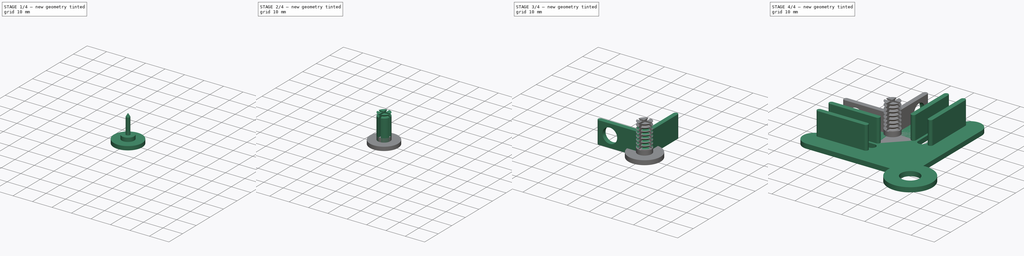
[diagram: build sequence overview — one tinted view per stage of 4, left to right]
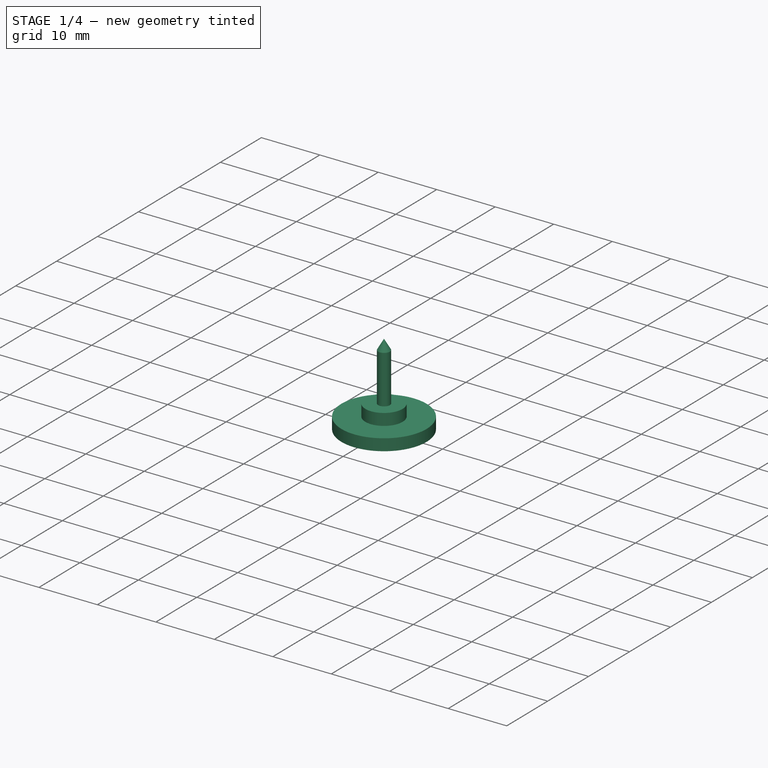
[diagram: stage 1 of 4 — iso view after this stage's code; geometry added in this stage tinted green]
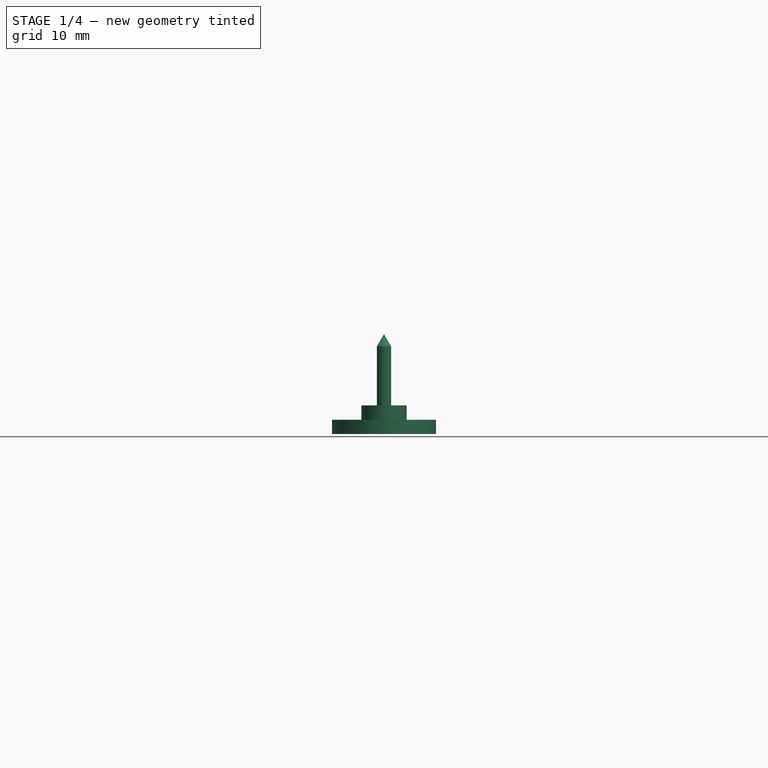
[diagram: stage 1 of 4 — front view after this stage's code; geometry added in this stage tinted green]
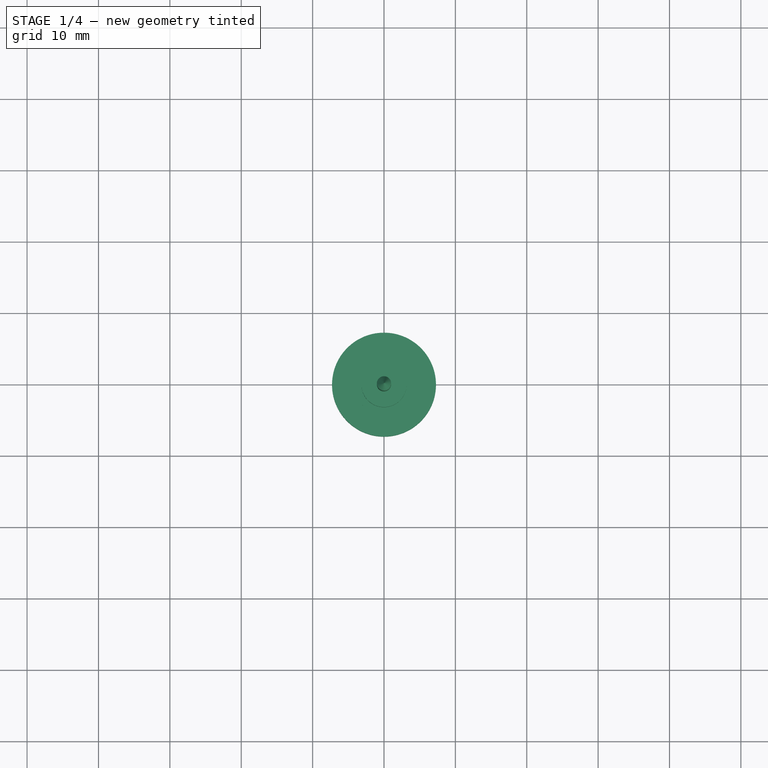
[diagram: stage 1 of 4 — top view after this stage's code; geometry added in this stage tinted green]
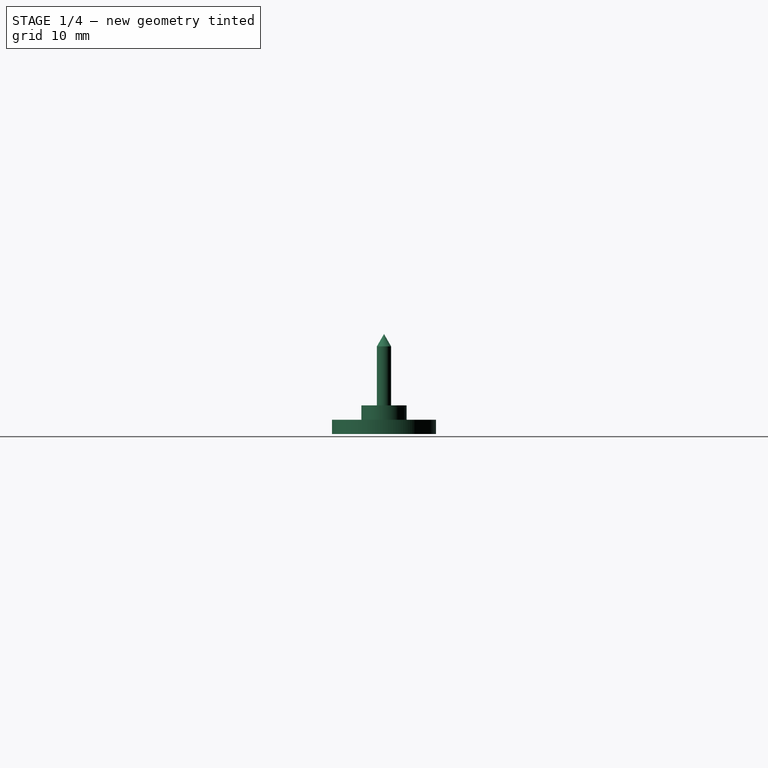
[diagram: stage 1 of 4 — right view after this stage's code; geometry added in this stage tinted green]
FCSTD DOCUMENT  (FreeCAD 0.18.4R)
Label: brackets
License: All rights reserved
LicenseURL: http://en.wikipedia.org/wiki/All_rights_reserved
objects: Sketcher::SketchObject×10, PartDesign::Pad×5, PartDesign::Plane×5, PartDesign::Body×5, PartDesign::Pocket×2, PartDesign::Revolution×2, Spreadsheet::Sheet×1, PartDesign::Mirrored×1, PartDesign::Groove×1, PartDesign::LinearPattern×1
note: 42 computed .brp shape members not serialized (recipe doc carries the construction recipe); baked Part::Feature solids carry a one-line shape summary decoded from their .brp

FEATURE [PartDesign::Body] Body001  label="side bracket"
  Group = -> [Sketch002,Pad002,DatumPlane001,Sketch003,Pocket,DatumPlane002,Mirrored]
  Origin = -> Origin001
  Tip = -> Mirrored
FEATURE [Sketcher::SketchObject] Sketch004
  MapMode = 5
  Support = -> [XY_Plane002]
  expr: Constraints[1] = dimz.B14 / 2 + dimz.B16 / 2
  sketch-geometry (1):
    g0: Circle CenterX=0 CenterY=0 CenterZ=0 NormalX=0 NormalY=0 NormalZ=1 AngleXU=0 Radius=4.175
  constraints (2):
    c: Coincident(g0,g-1)
    c: Radius(g0) = 4.175
FEATURE [PartDesign::Pad] Pad003
  Length = 2
  Length2 = 100
  Profile = -> Sketch004
  Type = 0
  expr: Length = dimz.B16
FEATURE [PartDesign::Body] Body002  label="locking pin"
  Group = -> [Sketch004,Pad003,DatumPlane003,Sketch005,Pad004,Sketch006,Pocket001,DatumPlane004,Sketch007,Groove,LinearPattern]
  Origin = -> Origin002
  Tip = -> LinearPattern
FEATURE [Sketcher::SketchObject] Sketch008
  MapMode = 5
  Placement = pos=(0,0,0) rot=(0.57735,0.57735,0.57735;2.0944rad)
  Support = -> [YZ_Plane003]
  expr: Constraints[11] = 0.5 * (dimz.B14 - 2 * dimz.B17 - 2 * 0.3mm)
  expr: Constraints[10] = dimz.B22
  expr: Constraints[9] = dimz.B23
  expr: Constraints[7] = dimz.B21
  sketch-geometry (4):
    g0: LineSegment StartX=2.125 StartY=0 StartZ=0 EndX=3.2797 EndY=2 EndZ=0
    g1: LineSegment StartX=3.2797 StartY=2 StartZ=0 EndX=7.2797 EndY=2 EndZ=0
    g2: LineSegment StartX=7.2797 StartY=2 StartZ=0 EndX=7.2797 EndY=0 EndZ=0
    g3: LineSegment StartX=7.2797 StartY=0 StartZ=0 EndX=2.125 EndY=0 EndZ=0
  constraints (12):
    c: Coincident(g0,g1)
    c: Coincident(g1,g2)
    c: Coincident(g2,g3)
    c: Coincident(g3,g0)
    c: PointOnObject(g0,g-1)
    c: Parallel(g3,g1)
    c: Parallel(g2,g-2)
    c: Angle(g3,g0) = 1.0472
    c: Parallel(g3,g-1)
    c: DistanceX(g1,g1) = 4
    c: DistanceY(g2,g2) = 2
    c: DistanceX(g-1,g0) = 2.125
FEATURE [PartDesign::Revolution] Revolution
  Angle = 360
  Axis = (-2e-16,3e-16,1)
  Base = (0,0,0)
  Placement = pos=(0,0,0) rot=(0.57735,0.57735,0.57735;2.0944rad)
  Profile = -> Sketch008
  ReferenceAxis = -> Sketch008 [V_Axis]
  Reversed = true
FEATURE [PartDesign::Body] Body003  label="lockingnut"
  Group = -> [Sketch008,Revolution]
  Origin = -> Origin003
  Tip = -> Revolution
FEATURE [Sketcher::SketchObject] Sketch009
  MapMode = 5
  Placement = pos=(0,0,0) rot=(1,0,0;1.5708rad)
  Support = -> [XZ_Plane004]
  expr: Constraints[21] = dimz.B16
  expr: Constraints[20] = dimz.B14 / 2
  expr: Constraints[19] = dimz.B16
  expr: Constraints[18] = dimz.B8
  expr: Constraints[22] = dimz.B27 / 2
  expr: Constraints[17] = dimz.B26
  expr: Constraints[16] = 30
  sketch-geometry (8):
    g0: LineSegment StartX=0 StartY=0 StartZ=0 EndX=5.175 EndY=0 EndZ=0
    g1: LineSegment StartX=5.175 StartY=0 StartZ=0 EndX=5.175 EndY=2 EndZ=0
    g2: LineSegment StartX=5.175 StartY=2 StartZ=0 EndX=3.175 EndY=2 EndZ=0
    g3: LineSegment StartX=3.175 StartY=2 StartZ=0 EndX=3.175 EndY=4 EndZ=0
    g4: LineSegment StartX=3.175 StartY=4 StartZ=0 EndX=1 EndY=4 EndZ=0
    g5: LineSegment StartX=1 StartY=4 StartZ=0 EndX=1 EndY=12.2679 EndZ=0
    g6: LineSegment StartX=1 StartY=12.2679 StartZ=0 EndX=4.201e-13 EndY=14 EndZ=0
    g7: LineSegment StartX=4.201e-13 StartY=14 StartZ=0 EndX=0 EndY=0 EndZ=0
  constraints (23):
    c: Coincident(g0,g1)
    c: Coincident(g1,g2)
    c: Coincident(g2,g3)
    c: Coincident(g3,g4)
    c: Coincident(g4,g5)
    c: Coincident(g5,g6)
    c: Coincident(g6,g7)
    c: Coincident(g7,g0)
    c: Coincident(g0,g-1)
    c: Parallel(g7,g5)
    c: Parallel(g5,g3)
    c: Parallel(g3,g1)
    c: Parallel(g1,g-2)
    c: Parallel(g4,g2)
    c: Parallel(g2,g0)
    c: Parallel(g0,g-1)
    c: Angle(g7,g6) = 0.523599
    c: DistanceY(g4,g6) = 10
    c: DistanceY(g3,g3) = 2
    c: DistanceY(g1,g1) = 2
    c: DistanceX(g0,g3) = 3.175
    c: DistanceX(g2,g2) = 2
    c: DistanceX(g-1,g5) = 1
FEATURE [PartDesign::Revolution] Revolution001
  Angle = 360
  Axis = (0,2e-16,1)
  Base = (0,0,0)
  Placement = pos=(0,0,0) rot=(1,0,0;1.5708rad)
  Profile = -> Sketch009
  ReferenceAxis = -> Sketch009 [V_Axis]
  Reversed = true
FEATURE [PartDesign::Body] Body004  label="piercing_pin"
  Group = -> [Sketch009,Revolution001]
  Origin = -> Origin004
  Tip = -> Revolution001
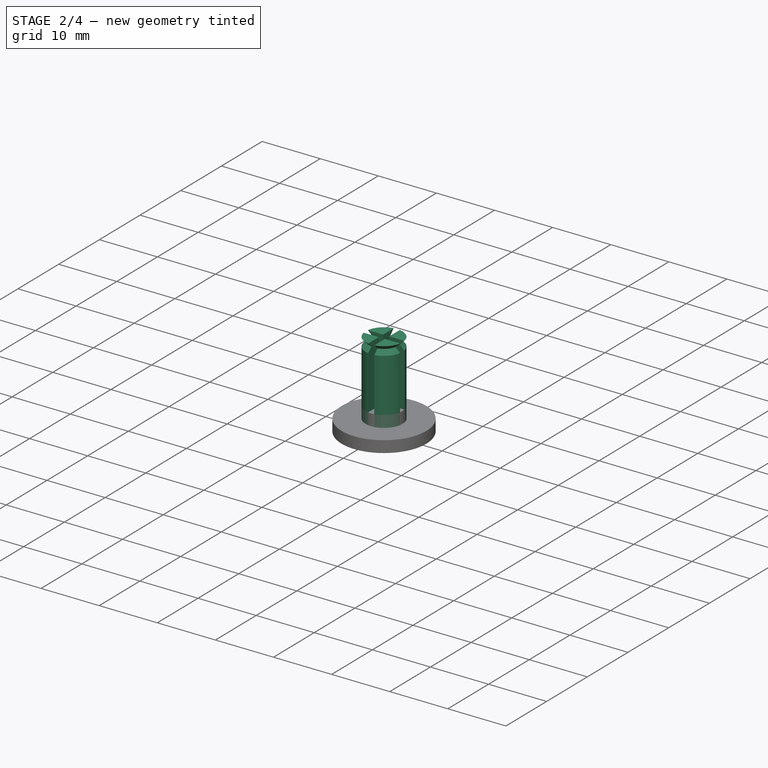
[diagram: stage 2 of 4 — iso view after this stage's code; geometry added in this stage tinted green]
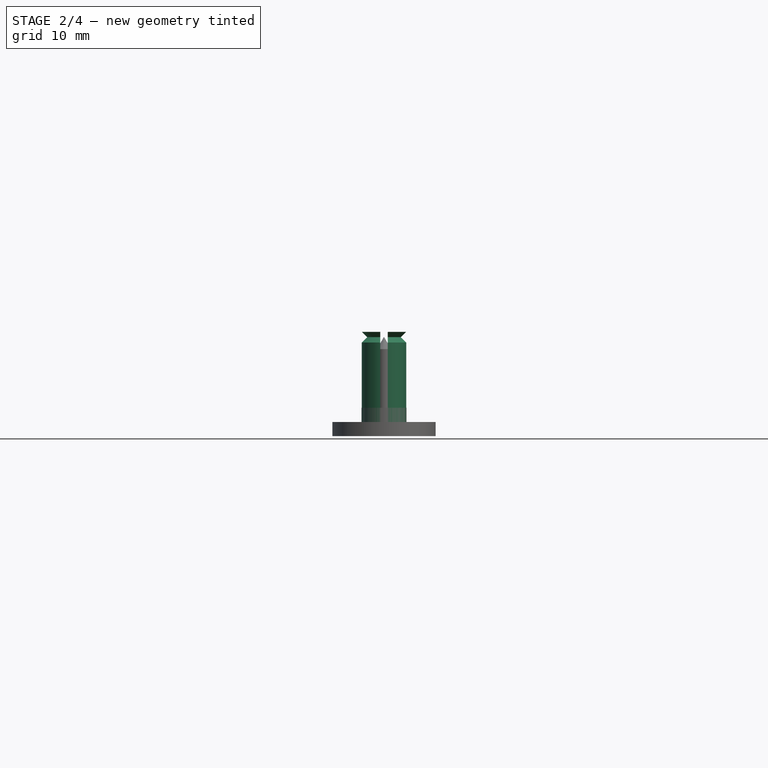
[diagram: stage 2 of 4 — front view after this stage's code; geometry added in this stage tinted green]
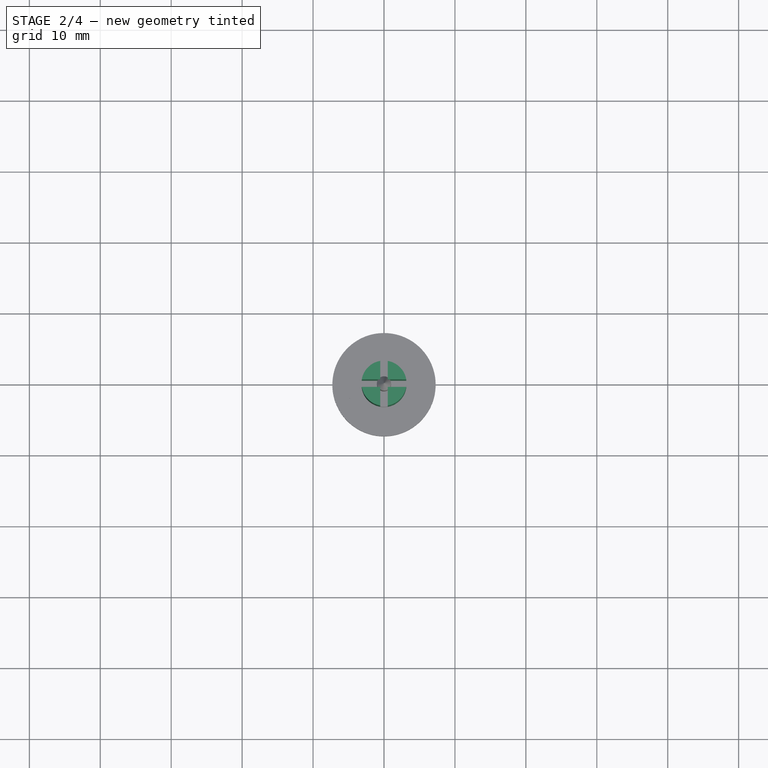
[diagram: stage 2 of 4 — top view after this stage's code; geometry added in this stage tinted green]
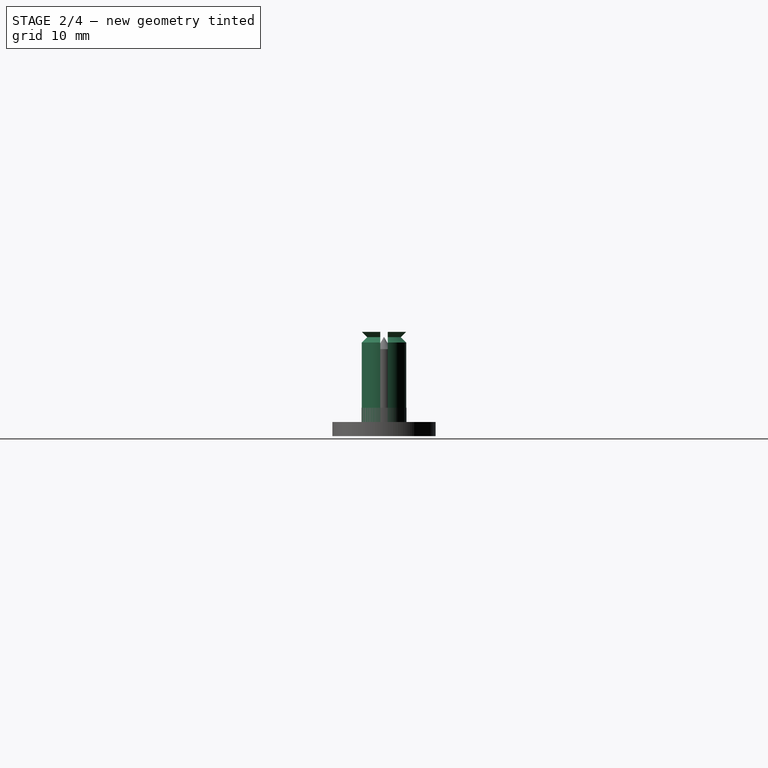
[diagram: stage 2 of 4 — right view after this stage's code; geometry added in this stage tinted green]
FEATURE [PartDesign::Plane] DatumPlane003
  AttachmentOffset = pos=(0,0,2) rot=(0,0,1;0rad)
  Length = 24
  MapMode = 2
  Placement = pos=(0,0,2) rot=(0,0,1;0rad)
  ResizeMode = 0
  Support = -> [Pad003]
  Width = 24
  expr: AttachmentOffset.Base.z = dimz.B16
FEATURE [Sketcher::SketchObject] Sketch005
  MapMode = 5
  Placement = pos=(0,0,2) rot=(0,0,1;0rad)
  Support = -> [DatumPlane003]
  expr: Constraints[0] = dimz.B14 / 2
  sketch-geometry (1):
    g0: Circle CenterX=0 CenterY=0 CenterZ=0 NormalX=0 NormalY=0 NormalZ=1 AngleXU=0 Radius=3.175
  constraints (2):
    c: Radius(g0) = 3.175
    c: Coincident(g0,g-1)
FEATURE [PartDesign::Pad] Pad004
  BaseFeature = -> Pad003
  Length = 12.7
  Length2 = 100
  Profile = -> Sketch005
  Type = 0
  expr: Length = dimz.B15
FEATURE [Sketcher::SketchObject] Sketch006
  MapMode = 5
  Placement = pos=(0,0,2) rot=(0,0,1;0rad)
  Support = -> [DatumPlane003]
  expr: Constraints[51] = dimz.B17 + 0.3mm
  expr: Constraints[8] = dimz.B14 * 2
  sketch-geometry (24):
    g0: LineSegment [constr] StartX=0.525 StartY=13.225 StartZ=0 EndX=13.225 EndY=13.225 EndZ=0
    g1: LineSegment [constr] StartX=13.225 StartY=13.225 StartZ=0 EndX=13.225 EndY=0.525 EndZ=0
    g2: LineSegment StartX=13.225 StartY=0.525 StartZ=0 EndX=0.525 EndY=0.525 EndZ=0
    g3: LineSegment StartX=0.525 StartY=0.525 StartZ=0 EndX=0.525 EndY=13.225 EndZ=0
    g4: LineSegment StartX=0.525 StartY=-0.525 StartZ=0 EndX=13.225 EndY=-0.525 EndZ=0
    g5: LineSegment [constr] StartX=13.225 StartY=-0.525 StartZ=0 EndX=13.225 EndY=-13.225 EndZ=0
    g6: LineSegment [constr] StartX=13.225 StartY=-13.225 StartZ=0 EndX=0.525 EndY=-13.225 EndZ=0
    g7: LineSegment StartX=0.525 StartY=-13.225 StartZ=0 EndX=0.525 EndY=-0.525 EndZ=0
    g8: LineSegment StartX=-13.225 StartY=-0.525 StartZ=0 EndX=-0.525 EndY=-0.525 EndZ=0
    g9: LineSegment StartX=-0.525 StartY=-0.525 StartZ=0 EndX=-0.525 EndY=-13.225 EndZ=0
    g10: LineSegment [constr] StartX=-0.525 StartY=-13.225 StartZ=0 EndX=-13.225 EndY=-13.225 EndZ=0
    g11: LineSegment [constr] StartX=-13.225 StartY=-13.225 StartZ=0 EndX=-13.225 EndY=-0.525 EndZ=0
    g12: LineSegment [constr] StartX=-13.225 StartY=13.225 StartZ=0 EndX=-0.525 EndY=13.225 EndZ=0
    g13: LineSegment StartX=-0.525 StartY=13.225 StartZ=0 EndX=-0.525 EndY=0.525 EndZ=0
    g14: LineSegment StartX=-0.525 StartY=0.525 StartZ=0 EndX=-13.225 EndY=0.525 EndZ=0
    g15: LineSegment [constr] StartX=-13.225 StartY=0.525 StartZ=0 EndX=-13.225 EndY=13.225 EndZ=0
    g16: LineSegment [constr] StartX=-0.525 StartY=0.525 StartZ=0 EndX=0.525 EndY=0.525 EndZ=0
    g17: LineSegment [constr] StartX=0.525 StartY=0.525 StartZ=0 EndX=0.525 EndY=-0.525 EndZ=0
    g18: LineSegment [constr] StartX=0.525 StartY=-0.525 StartZ=0 EndX=-0.525 EndY=-0.525 EndZ=0
    g19: LineSegment [constr] StartX=-0.525 StartY=-0.525 StartZ=0 EndX=-0.525 EndY=0.525 EndZ=0
    g20: LineSegment StartX=-13.225 StartY=0.525 StartZ=0 EndX=-13.225 EndY=-0.525 EndZ=0
    g21: LineSegment StartX=-0.525 StartY=-13.225 StartZ=0 EndX=0.525 EndY=-13.225 EndZ=0
    g22: LineSegment StartX=13.225 StartY=0.525 StartZ=0 EndX=13.225 EndY=-0.525 EndZ=0
    g23: LineSegment StartX=-0.525 StartY=13.225 StartZ=0 EndX=0.525 EndY=13.225 EndZ=0
  constraints (64):
    c: Coincident(g0,g1)
    c: Coincident(g1,g2)
    c: Coincident(g2,g3)
    c: Coincident(g3,g0)
    c: Horizontal(g0)
    c: Horizontal(g2)
    c: Vertical(g1)
    c: Equal(g0,g3)
    c: DistanceY(g3,g3) = 12.7
    c: Coincident(g4,g5)
    c: Coincident(g5,g6)
    c: Coincident(g6,g7)
    c: Coincident(g7,g4)
    c: Horizontal(g4)
    c: Horizontal(g6)
    c: Vertical(g5)
    c: Vertical(g7)
    c: Equal(g4,g7)
    c: Equal(g3,g7) = 12.7
    c: Coincident(g8,g9)
    c: Coincident(g9,g10)
    c: Coincident(g10,g11)
    c: Coincident(g11,g8)
    c: Horizontal(g8)
    c: Vertical(g9)
    c: Vertical(g11)
    c: Equal(g8,g11)
    c: Coincident(g12,g13)
    c: Coincident(g13,g14)
    c: Coincident(g14,g15)
    c: Coincident(g15,g12)
    c: Horizontal(g12)
    c: Horizontal(g14)
    c: Vertical(g13)
    c: Equal(g12,g15)
    c: Equal(g8,g9)
    c: Equal(g9,g14)
    c: Equal(g14,g13)
    c: Equal(g13,g3)
    c: Equal(g3,g2)
    c: Equal(g2,g4)
    c: Equal(g4,g7)
    c: Coincident(g16,g17)
    c: Coincident(g17,g18)
    c: Coincident(g18,g19)
    c: Coincident(g19,g16)
    c: Horizontal(g18)
    c: Vertical(g19)
    c: Equal(g16,g17)
    c: Symmetric(g16,g17,g-1)
    c: Symmetric(g16,g16,g-2)
    c: DistanceX(g16,g16) = 1.05
    c: Coincident(g13,g16)
    c: Coincident(g8,g18)
    c: Coincident(g2,g16)
    c: Coincident(g4,g17)
    c: Coincident(g23,g13)
    c: Coincident(g23,g3)
    c: Coincident(g22,g2)
    c: Coincident(g22,g4)
    c: Coincident(g21,g7)
    c: Coincident(g21,g9)
    c: Coincident(g20,g14)
    c: Coincident(g20,g8)
FEATURE [PartDesign::Pocket] Pocket001
  BaseFeature = -> Pad004
  Length = 5
  Length2 = 100
  Profile = -> Sketch006
  Reversed = true
  Type = 1
FEATURE [PartDesign::Plane] DatumPlane004
  Length = 24.4452
  MapMode = 3
  Placement = pos=(0,0,0) rot=(1,0,0;1.5708rad)
  ResizeMode = 0
  Support = -> [Pocket001]
  Width = 29.1452
FEATURE [Sketcher::SketchObject] Sketch007
  MapMode = 5
  Placement = pos=(0,0,0) rot=(1,0,0;1.5708rad)
  Support = -> [DatumPlane004]
  expr: Constraints[7] = 90
  expr: Constraints[4] = dimz.B16 + dimz.B15
  expr: Constraints[3] = dimz.B17
  expr: Constraints[2] = 0.5 * dimz.B14
  sketch-geometry (3):
    g0: LineSegment StartX=3.175 StartY=14.7 StartZ=0 EndX=2.425 EndY=13.95 EndZ=0
    g1: LineSegment StartX=3.175 StartY=13.2 StartZ=0 EndX=3.175 EndY=14.7 EndZ=0
    g2: LineSegment StartX=2.425 StartY=13.95 StartZ=0 EndX=3.175 EndY=13.2 EndZ=0
  constraints (9):
    c: Coincident(g1,g0)
    c: Parallel(g1,g-2)
    c: DistanceX(g-1,g1) = 3.175
    c: DistanceX(g0,g1) = 0.75
    c: DistanceY(g-1,g0) = 14.7
    c: Coincident(g0,g2)
    c: Coincident(g2,g1)
    c: Angle(g2,g0) = 1.5708
    c: Equal(g0,g2)
FEATURE [PartDesign::Groove] Groove
  Angle = 360
  Axis = (-3e-16,3e-16,1)
  Base = (0,0,0)
  BaseFeature = -> Pocket001
  Profile = -> Sketch007
  ReferenceAxis = -> Z_Axis002
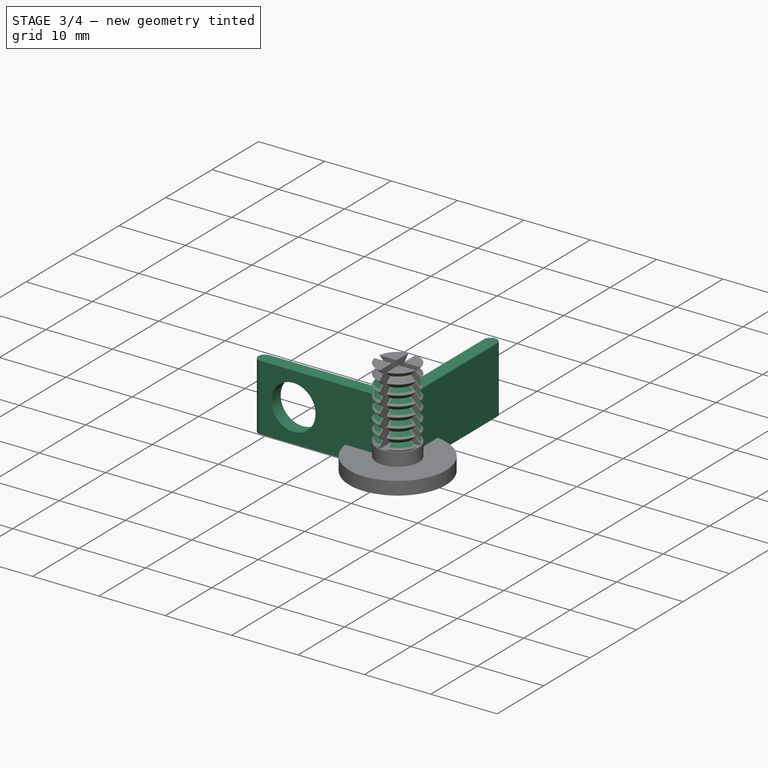
[diagram: stage 3 of 4 — iso view after this stage's code; geometry added in this stage tinted green]
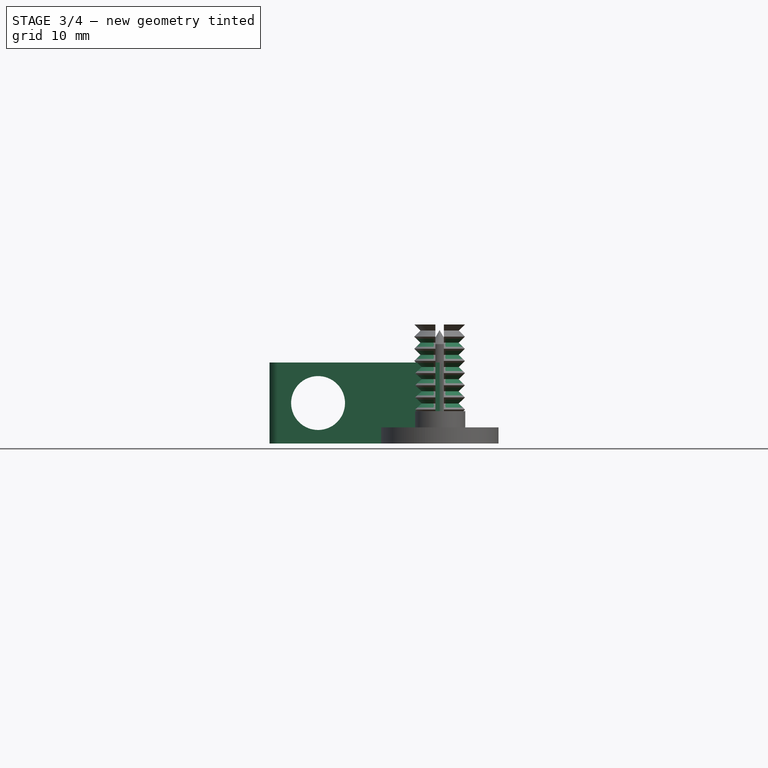
[diagram: stage 3 of 4 — front view after this stage's code; geometry added in this stage tinted green]
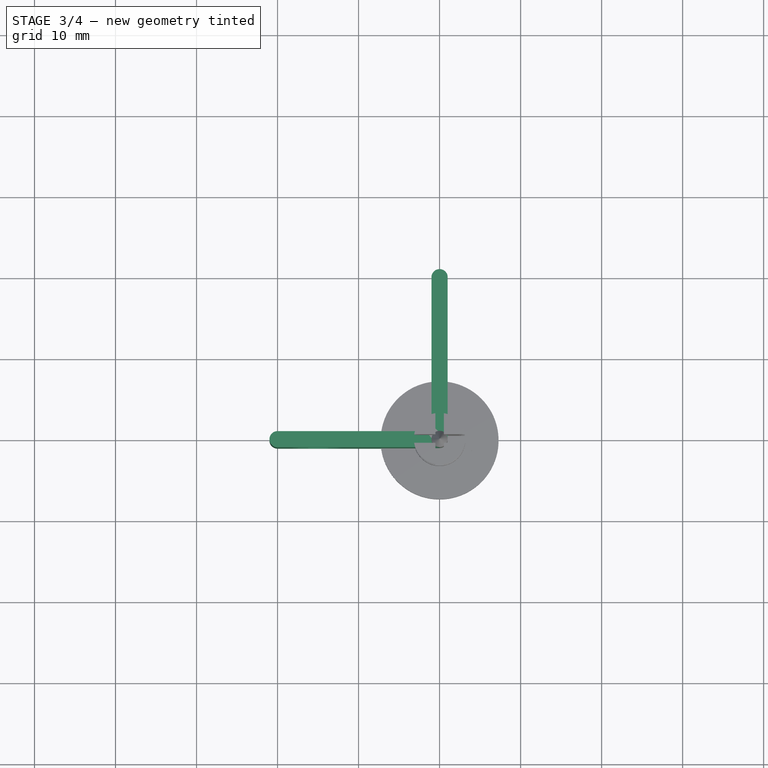
[diagram: stage 3 of 4 — top view after this stage's code; geometry added in this stage tinted green]
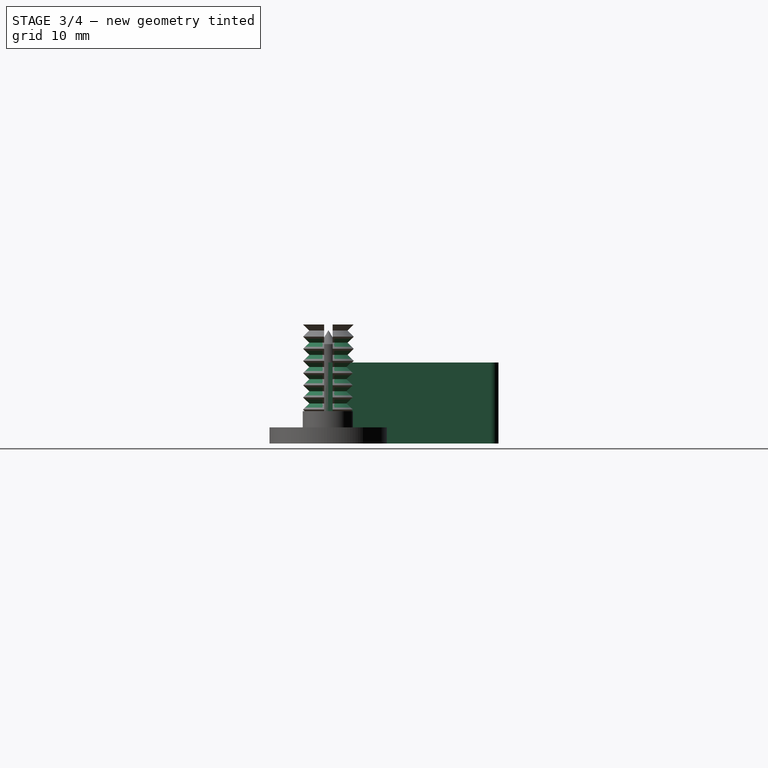
[diagram: stage 3 of 4 — right view after this stage's code; geometry added in this stage tinted green]
FEATURE [PartDesign::Body] Body  label="corner_bracket"
  Group = -> [Sketch,Pad,DatumPlane,Sketch001,Pad001]
  Origin = -> Origin
  Tip = -> Pad001
FEATURE [Sketcher::SketchObject] Sketch002
  MapMode = 5
  Support = -> [XY_Plane001]
  expr: Constraints[26] = 0
  expr: Constraints[29] = 90
  expr: Constraints[25] = 90
  expr: Constraints[27] = 0
  expr: Constraints[22] = dimz.B8
  expr: Constraints[24] = dimz.B11
  expr: Constraints[23] = dimz.B11
  sketch-geometry (10):
    g0: ArcOfCircle CenterX=-20 CenterY=-1e-16 CenterZ=0 NormalX=0 NormalY=0 NormalZ=1 AngleXU=0 Radius=1 StartAngle=1.5708 EndAngle=4.71239
    g1: ArcOfCircle CenterX=0 CenterY=20 CenterZ=0 NormalX=0 NormalY=0 NormalZ=1 AngleXU=0 Radius=1 StartAngle=9e-16 EndAngle=3.14159
    g2: ArcOfCircle CenterX=0 CenterY=0 CenterZ=0 NormalX=0 NormalY=0 NormalZ=1 AngleXU=0 Radius=1 StartAngle=4.71239 EndAngle=6.28319
    g3: ArcOfCircle CenterX=-2 CenterY=2 CenterZ=0 NormalX=0 NormalY=0 NormalZ=1 AngleXU=0 Radius=1 StartAngle=4.71239 EndAngle=6.28319
    g4: LineSegment StartX=-1 StartY=20 StartZ=0 EndX=-1 EndY=2 EndZ=0
    g5: LineSegment StartX=-2 StartY=1 StartZ=0 EndX=-20 EndY=1 EndZ=0
    g6: LineSegment StartX=-20 StartY=-1 StartZ=0 EndX=0 EndY=-1 EndZ=0
    g7: LineSegment StartX=1 StartY=-2.16e-14 StartZ=0 EndX=1 EndY=20 EndZ=0
    g8: LineSegment [constr] StartX=-1 StartY=20 StartZ=0 EndX=1 EndY=20 EndZ=0
    g9: LineSegment [constr] StartX=-20 StartY=1 StartZ=0 EndX=-20 EndY=-1 EndZ=0
  constraints (31):
    c: Coincident(g0,g5)
    c: Coincident(g5,g3)
    c: Coincident(g3,g4)
    c: Coincident(g4,g1)
    c: Coincident(g1,g7)
    c: Coincident(g7,g2)
    c: Coincident(g2,g6)
    c: Coincident(g6,g0)
    c: Parallel(g6,g5)
    c: Parallel(g5,g-1)
    c: Parallel(g4,g-2)
    c: Parallel(g-2,g7)
    c: PointOnObject(g1,g-2)
    c: Coincident(g0,g9)
    c: Coincident(g9,g0)
    c: PointOnObject(g0,g9)
    c: Coincident(g8,g1)
    c: Coincident(g1,g8)
    c: PointOnObject(g1,g8)
    c: Parallel(g8,g-1)
    c: Parallel(g-2,g9)
    c: Equal(g9,g8)
    c: DistanceY(g9,g9) = 2
    c: DistanceX(g0,g1) = 20
    c: DistanceY(g-1,g1) = 20
    c: Angle(g3) = 1.5708
    c: DistanceX(g3,g3) = 0
    c: DistanceX(g2,g2) = 0
    c: Equal(g3,g2)
    c: Angle(g2) = 1.5708
    c: Coincident(g2,g-1)
FEATURE [PartDesign::Pad] Pad002
  Length = 10
  Length2 = 100
  Profile = -> Sketch002
  Type = 0
  expr: Length = dimz.B10
FEATURE [PartDesign::Plane] DatumPlane001
  Length = 35.9721
  MapMode = 3
  Placement = pos=(0,0,0) rot=(1,0,0;1.5708rad)
  ResizeMode = 0
  Support = -> [Pad002]
  Width = 24.9794
FEATURE [Sketcher::SketchObject] Sketch003
  MapMode = 5
  Placement = pos=(0,0,0) rot=(1,0,0;1.5708rad)
  Support = -> [DatumPlane001]
  expr: Constraints[2] = dimz.B10 / 2
  expr: Constraints[1] = 3 / 4 * dimz.B11
  expr: Constraints[0] = dimz.B14 / 2 + 0.5 * 0.3mm
  sketch-geometry (1):
    g0: Circle CenterX=-15 CenterY=5 CenterZ=0 NormalX=0 NormalY=0 NormalZ=1 AngleXU=0 Radius=3.325
  constraints (3):
    c: Radius(g0) = 3.325
    c: DistanceX(g0,g-1) = 15
    c: DistanceY(g-1,g0) = 5
FEATURE [PartDesign::Pocket] Pocket
  BaseFeature = -> Pad002
  Length = 5
  Length2 = 100
  Midplane = true
  Profile = -> Sketch003
  Type = 1
FEATURE [PartDesign::LinearPattern] LinearPattern
  BaseFeature = -> Groove
  Direction = -> Z_Axis002
  Length = 10.5
  Occurrences = 8
  Originals = -> [Groove]
  Reversed = true
  expr: Occurrences = dimz.B18 + 1
  expr: Length = dimz.B18 * 2 * dimz.B17
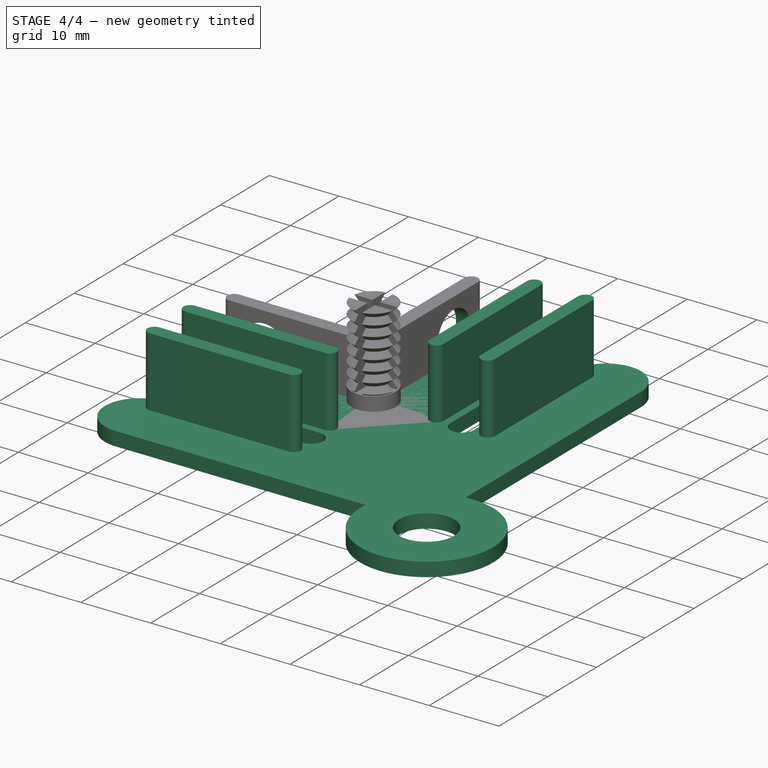
[diagram: stage 4 of 4 — iso view after this stage's code; geometry added in this stage tinted green]
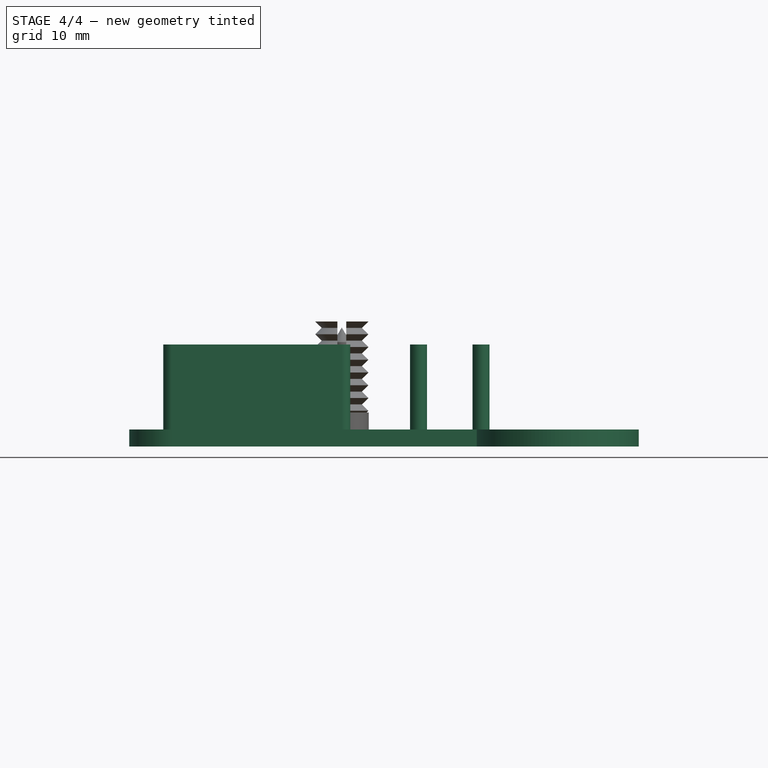
[diagram: stage 4 of 4 — front view after this stage's code; geometry added in this stage tinted green]
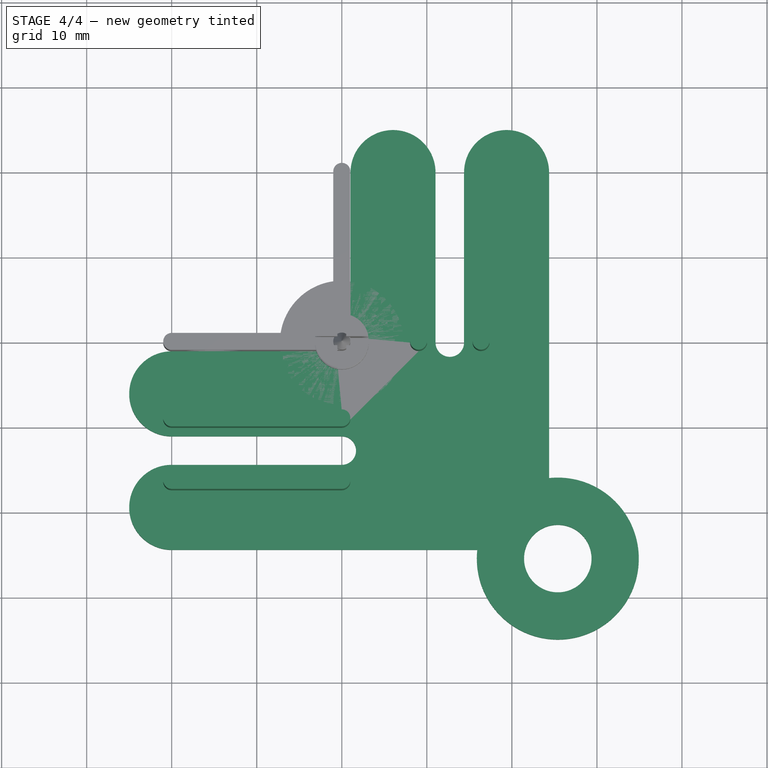
[diagram: stage 4 of 4 — top view after this stage's code; geometry added in this stage tinted green]
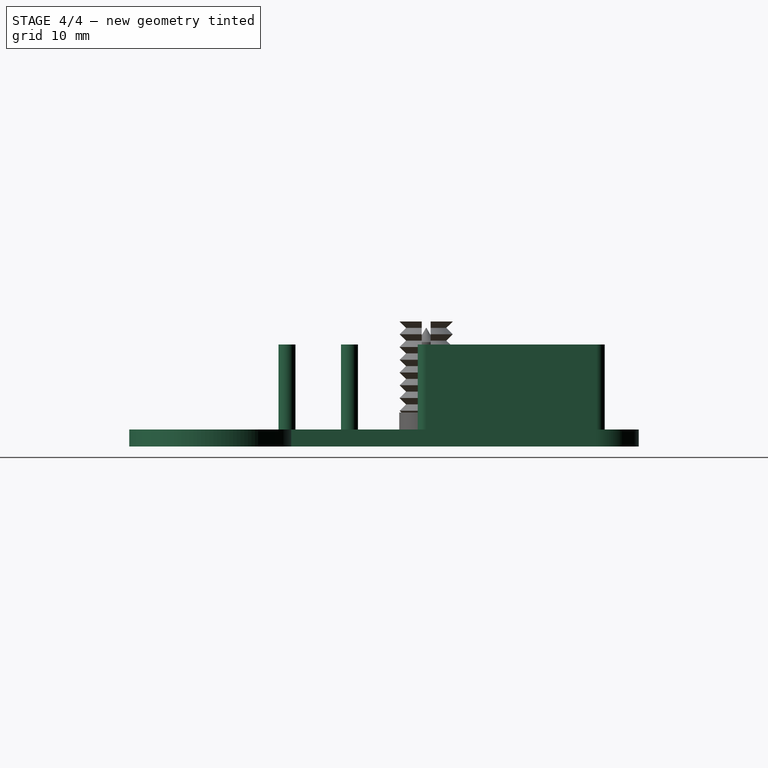
[diagram: stage 4 of 4 — right view after this stage's code; geometry added in this stage tinted green]
FEATURE [Sketcher::SketchObject] Sketch
  MapMode = 5
  Support = -> [XY_Plane]
  expr: Constraints[66] = dimz.B5
  expr: Constraints[62] = dimz.B6 / 2
  expr: Constraints[61] = 25.4mm
  expr: Constraints[60] = 25.4mm
  expr: Constraints[59] = dimz.B4 / 2
  expr: Constraints[55] = dimz.B3
  expr: Constraints[43] = dimz.B2
  expr: Constraints[53] = 0
  expr: Constraints[52] = dimz.B1 * dimz.D1
  expr: Constraints[38] = 0
  sketch-geometry (23):
    g0: ArcOfCircle CenterX=-20 CenterY=-6.025 CenterZ=0 NormalX=0 NormalY=0 NormalZ=1 AngleXU=0 Radius=5 StartAngle=1.5708 EndAngle=4.71239
    g1: LineSegment [constr] StartX=-20 StartY=-1.025 StartZ=0 EndX=-20 EndY=-11.025 EndZ=0
    g2: ArcOfCircle CenterX=-0.65 CenterY=0.65 CenterZ=0 NormalX=0 NormalY=0 NormalZ=1 AngleXU=0 Radius=1.675 StartAngle=4.71239 EndAngle=6.28319
    g3: ArcOfCircle CenterX=-20 CenterY=-19.375 CenterZ=0 NormalX=0 NormalY=0 NormalZ=1 AngleXU=0 Radius=5 StartAngle=1.5708 EndAngle=4.71239
    g4: LineSegment [constr] StartX=-20 StartY=-14.375 StartZ=0 EndX=-20 EndY=-24.375 EndZ=0
    g5: ArcOfCircle CenterX=6.025 CenterY=20 CenterZ=0 NormalX=0 NormalY=0 NormalZ=1 AngleXU=0 Radius=5 StartAngle=3e-16 EndAngle=3.14159
    g6: LineSegment [constr] StartX=11.025 StartY=20 StartZ=0 EndX=1.025 EndY=20 EndZ=0
    g7: ArcOfCircle CenterX=19.375 CenterY=20 CenterZ=0 NormalX=0 NormalY=0 NormalZ=1 AngleXU=0 Radius=5 StartAngle=0 EndAngle=3.14159
    g8: LineSegment [constr] StartX=24.375 StartY=20 StartZ=0 EndX=14.375 EndY=20 EndZ=0
    g9: LineSegment StartX=-20 StartY=-1.025 StartZ=0 EndX=-0.65 EndY=-1.025 EndZ=0
    g10: LineSegment StartX=1.025 StartY=0.65 StartZ=0 EndX=1.025 EndY=20 EndZ=0
    g11: LineSegment StartX=-20 StartY=-11.025 StartZ=0 EndX=0 EndY=-11.025 EndZ=0
    g12: LineSegment StartX=-20 StartY=-14.375 StartZ=0 EndX=0 EndY=-14.375 EndZ=0
    g13: LineSegment StartX=-20 StartY=-24.375 StartZ=0 EndX=15.9303 EndY=-24.375 EndZ=0
    g14: ArcOfCircle CenterX=0 CenterY=-12.7 CenterZ=0 NormalX=0 NormalY=0 NormalZ=1 AngleXU=0 Radius=1.675 StartAngle=4.71239 EndAngle=7.85398
    g15: LineSegment StartX=11.025 StartY=20 StartZ=0 EndX=11.025 EndY=0 EndZ=0
    g16: LineSegment StartX=14.375 StartY=20 StartZ=0 EndX=14.375 EndY=0 EndZ=0
    g17: LineSegment StartX=24.375 StartY=20 StartZ=0 EndX=24.375 EndY=-15.9303 EndZ=0
    g18: ArcOfCircle CenterX=12.7 CenterY=0 CenterZ=0 NormalX=0 NormalY=0 NormalZ=1 AngleXU=0 Radius=1.675 StartAngle=3.14159 EndAngle=6.28319
    g19: LineSegment [constr] StartX=5e-16 StartY=-11.025 StartZ=0 EndX=-3e-16 EndY=-14.375 EndZ=0
    g20: LineSegment [constr] StartX=11.025 StartY=2e-16 StartZ=0 EndX=14.375 EndY=-4e-16 EndZ=0
    g21: Circle CenterX=25.4 CenterY=-25.4 CenterZ=0 NormalX=0 NormalY=0 NormalZ=1 AngleXU=0 Radius=3.96875
    g22: ArcOfCircle CenterX=25.4 CenterY=-25.4 CenterZ=0 NormalX=0 NormalY=0 NormalZ=1 AngleXU=0 Radius=9.525 StartAngle=3.03377 EndAngle=7.9618
  constraints (70):
    c: Coincident(g0,g1)
    c: Coincident(g1,g0)
    c: PointOnObject(g0,g1)
    c: Coincident(g3,g4)
    c: Coincident(g4,g3)
    c: PointOnObject(g3,g4)
    c: Coincident(g5,g6)
    c: Coincident(g6,g5)
    c: PointOnObject(g5,g6)
    c: Coincident(g7,g8)
    c: Coincident(g8,g7)
    c: PointOnObject(g7,g8)
    c: Parallel(g4,g1)
    c: Parallel(g1,g-2)
    c: Parallel(g8,g6)
    c: Parallel(g6,g-1)
    c: Equal(g0,g3)
    c: Equal(g3,g5)
    c: Equal(g5,g7)
    c: Angle(g2) = 1.5708
    c: Coincident(g3,g13)
    c: Coincident(g3,g12)
    c: Coincident(g12,g14)
    c: Coincident(g11,g14)
    c: Coincident(g11,g0)
    c: Coincident(g0,g9)
    c: Coincident(g9,g2)
    c: Coincident(g2,g10)
    c: Coincident(g10,g5)
    c: Coincident(g16,g18)
    c: Coincident(g15,g18)
    c: Coincident(g15,g5)
    c: Coincident(g16,g7)
    c: Coincident(g17,g7)
    c: Parallel(g12,g11)
    c: Parallel(g11,g9)
    c: Parallel(g9,g13)
    c: Parallel(g13,g-1)
    c: DistanceX(g0,g3) = 0
    c: Parallel(g10,g15)
    c: Parallel(g15,g16)
    c: Parallel(g16,g17)
    c: Parallel(g17,g-2)
    c: DistanceX(g6,g6) = 10
    c: Coincident(g19,g11)
    c: Coincident(g19,g12)
    c: Coincident(g20,g15)
    c: Coincident(g20,g16)
    c: PointOnObject(g14,g19)
    c: PointOnObject(g18,g20)
    c: Parallel(g20,g-1)
    c: Parallel(g19,g-2)
    c: Distance(g20) = 3.35
    c: DistanceX(g2,g2) = 0
    c: Equal(g20,g19)
    c: DistanceX(g11,g11) = 20
    c: Equal(g15,g11)
    c: Equal(g15,g16)
    c: Equal(g9,g10)
    c: Radius(g21) = 3.96875
    c: DistanceX(g14,g21) = 25.4
    c: DistanceY(g21,g18) = 25.4
    c: DistanceY(g14,g18) = 12.7
    c: Coincident(g21,g22)
    c: Coincident(g17,g22)
    c: Coincident(g22,g13)
    c: Radius(g22) = 9.525
    c: Equal(g2,g14)
    c: PointOnObject(g18,g-1)
    c: PointOnObject(g14,g-2)
FEATURE [Spreadsheet::Sheet] Spreadsheet  label="dimz"
  cells = A1=base gap width; B1==0.25 * 25.4mm - 3mm; C1=shrink factor; D1=1; A2=base pad width; B2==10mm; A3=pad length; B3==20mm; A4=screw hole diam; B4==0.5 * (3 / 8 + 1 / 4) * 25.4mm; A5=screw head diam; B5==3 / 8 * 25.4mm; A6=slot screw separation; B6==25.4mm; A7=base thick; B7==2mm; A8=wall width; B8==2mm; A9=gap width; B9==0.25 * 25.4mm - 1mm; A10=wall height; B10==10mm; A11=wall length; B11==20mm; A14=side bracket hole diam; B14==1 / 4 * 25.4mm; A15=side bracket pin heigth; B15==0.5 * 25.4mm; A16=side bracket pin head height; B16==2mm; A17=side bracket pin dip; B17==0.75mm; A18=number_occurances; B18=7; A21=locking nut attack angle; B21=60; A22=locking thickness; B22==2mm; A23=locking nut extra diameter; B23==4mm; A25=locking pin sharp angle; B25=30; A26=locking pin shaft length; B26==10mm; A27=lock pin shaft diam; B27==2mm
FEATURE [PartDesign::Pad] Pad
  Length = 2
  Length2 = 100
  Profile = -> Sketch
  Type = 0
  expr: Length = dimz.B7
FEATURE [PartDesign::Plane] DatumPlane
  AttachmentOffset = pos=(0,0,2) rot=(0,0,1;0rad)
  Length = 71.862
  MapMode = 2
  Placement = pos=(0,0,2) rot=(0,0,1;0rad)
  ResizeMode = 0
  Support = -> [Pad]
  Width = 71.862
  expr: AttachmentOffset.Base.z = dimz.B7
FEATURE [Sketcher::SketchObject] Sketch001
  MapMode = 5
  Placement = pos=(0,0,2) rot=(0,0,1;0rad)
  Support = -> [DatumPlane]
  expr: Constraints[81] = dimz.B11
  expr: Constraints[79] = dimz.B9
  expr: Constraints[73] = dimz.B6 / 2
  expr: Constraints[72] = dimz.B6 / 2
  expr: Constraints[65] = dimz.B8
  sketch-geometry (28):
    g0: ArcOfCircle CenterX=-20 CenterY=-9.025 CenterZ=0 NormalX=0 NormalY=0 NormalZ=1 AngleXU=0 Radius=1 StartAngle=1.57081 EndAngle=4.7124
    g1: ArcOfCircle CenterX=0 CenterY=-9.025 CenterZ=0 NormalX=0 NormalY=0 NormalZ=1 AngleXU=0 Radius=1 StartAngle=4.71239 EndAngle=7.85398
    g2: LineSegment StartX=-20 StartY=-8.025 StartZ=0 EndX=0 EndY=-8.025 EndZ=0
    g3: LineSegment StartX=-20 StartY=-10.025 StartZ=0 EndX=0 EndY=-10.025 EndZ=0
    g4: LineSegment [constr] StartX=-20 StartY=-8.025 StartZ=0 EndX=-20 EndY=-10.025 EndZ=0
    g5: LineSegment [constr] StartX=3e-16 StartY=-8.025 StartZ=0 EndX=0 EndY=-10.025 EndZ=0
    g6: ArcOfCircle CenterX=-20 CenterY=-16.375 CenterZ=0 NormalX=0 NormalY=0 NormalZ=1 AngleXU=0 Radius=1 StartAngle=1.57079 EndAngle=4.71238
    g7: ArcOfCircle CenterX=0 CenterY=-16.375 CenterZ=0 NormalX=0 NormalY=0 NormalZ=1 AngleXU=0 Radius=1 StartAngle=4.71239 EndAngle=7.85398
    g8: LineSegment StartX=-20 StartY=-15.375 StartZ=0 EndX=0 EndY=-15.375 EndZ=0
    g9: LineSegment StartX=-20 StartY=-17.375 StartZ=0 EndX=0 EndY=-17.375 EndZ=0
    g10: LineSegment [constr] StartX=-20 StartY=-15.375 StartZ=0 EndX=-20 EndY=-17.375 EndZ=0
    g11: LineSegment [constr] StartX=0 StartY=-15.375 StartZ=0 EndX=0 EndY=-17.375 EndZ=0
    g12: ArcOfCircle CenterX=9.025 CenterY=20 CenterZ=0 NormalX=0 NormalY=0 NormalZ=1 AngleXU=0 Radius=1 StartAngle=6.28318 EndAngle=9.42478
    g13: ArcOfCircle CenterX=9.025 CenterY=0 CenterZ=0 NormalX=0 NormalY=0 NormalZ=1 AngleXU=0 Radius=1 StartAngle=3.14159 EndAngle=6.28319
    g14: LineSegment StartX=10.025 StartY=20 StartZ=0 EndX=10.025 EndY=0 EndZ=0
    g15: LineSegment StartX=8.025 StartY=20 StartZ=0 EndX=8.025 EndY=0 EndZ=0
    g16: LineSegment [constr] StartX=10.025 StartY=20 StartZ=0 EndX=8.025 EndY=20 EndZ=0
    g17: LineSegment [constr] StartX=10.025 StartY=-2e-16 StartZ=0 EndX=8.025 EndY=1e-16 EndZ=0
    g18: ArcOfCircle CenterX=16.375 CenterY=20 CenterZ=0 NormalX=0 NormalY=0 NormalZ=1 AngleXU=0 Radius=1 StartAngle=6.28319 EndAngle=9.42478
    g19: ArcOfCircle CenterX=16.375 CenterY=0 CenterZ=0 NormalX=0 NormalY=0 NormalZ=1 AngleXU=0 Radius=1 StartAngle=3.14159 EndAngle=6.28319
    g20: LineSegment StartX=17.375 StartY=20 StartZ=0 EndX=17.375 EndY=0 EndZ=0
    g21: LineSegment StartX=15.375 StartY=20 StartZ=0 EndX=15.375 EndY=0 EndZ=0
    g22: LineSegment [constr] StartX=17.375 StartY=20 StartZ=0 EndX=15.375 EndY=20 EndZ=0
    g23: LineSegment [constr] StartX=17.375 StartY=-2e-16 StartZ=0 EndX=15.375 EndY=1e-16 EndZ=0
    g24: LineSegment [constr] StartX=0 StartY=-10.025 StartZ=0 EndX=0 EndY=-12.7 EndZ=0
    g25: LineSegment [constr] StartX=0 StartY=-12.7 StartZ=0 EndX=0 EndY=-15.375 EndZ=0
    g26: LineSegment [constr] StartX=10.025 StartY=-2e-16 StartZ=0 EndX=12.7 EndY=0 EndZ=0
    g27: LineSegment [constr] StartX=12.7 StartY=0 StartZ=0 EndX=15.375 EndY=1e-16 EndZ=0
  constraints (82):
    c: Coincident(g0,g2)
    c: Coincident(g0,g3)
    c: Coincident(g2,g1)
    c: Coincident(g3,g1)
    c: Equal(g1,g0)
    c: Parallel(g2,g3)
    c: PointOnObject(g0,g4)
    c: Coincident(g4,g0)
    c: Coincident(g4,g0)
    c: PointOnObject(g1,g5)
    c: Coincident(g5,g1)
    c: Coincident(g5,g1)
    c: Perpendicular(g5,g2)
    c: Coincident(g6,g8)
    c: Coincident(g6,g9)
    c: Coincident(g8,g7)
    c: Coincident(g9,g7)
    c: Equal(g7,g6)
    c: Parallel(g8,g9)
    c: PointOnObject(g6,g10)
    c: Coincident(g10,g6)
    c: Coincident(g10,g6)
    c: PointOnObject(g7,g11)
    c: Coincident(g11,g7)
    c: Coincident(g11,g7)
    c: Perpendicular(g11,g8)
    c: Coincident(g12,g14)
    c: Coincident(g12,g15)
    c: Coincident(g14,g13)
    c: Coincident(g15,g13)
    c: Equal(g13,g12)
    c: Parallel(g14,g15)
    c: PointOnObject(g12,g16)
    c: Coincident(g16,g12)
    c: Coincident(g16,g12)
    c: PointOnObject(g13,g17)
    c: Coincident(g17,g13)
    c: Coincident(g17,g13)
    c: Perpendicular(g17,g14)
    c: Coincident(g18,g20)
    c: Coincident(g18,g21)
    c: Coincident(g20,g19)
    c: Coincident(g21,g19)
    c: Equal(g19,g18)
    c: Parallel(g20,g21)
    c: PointOnObject(g18,g22)
    c: Coincident(g22,g18)
    c: Coincident(g22,g18)
    c: PointOnObject(g19,g23)
    c: Coincident(g23,g19)
    c: Coincident(g23,g19)
    c: Perpendicular(g23,g20)
    c: Parallel(g15,g21)
    c: Parallel(g21,g-2)
    c: Parallel(g3,g8)
    c: Parallel(g8,g-1)
    c: PointOnObject(g1,g-2)
    c: PointOnObject(g7,g-2)
    c: Equal(g8,g3)
    c: PointOnObject(g13,g-1)
    c: PointOnObject(g19,g-1)
    c: Equal(g21,g14)
    c: Equal(g5,g17)
    c: Equal(g17,g23)
    c: Equal(g23,g11)
    c: Distance(g5) = 2
    c: Coincident(g24,g25)
    c: Parallel(g25,g24)
    c: Equal(g24,g25)
    c: Coincident(g26,g27)
    c: Parallel(g27,g26)
    c: Equal(g26,g27)
    c: DistanceY(g24,g-1) = 12.7
    c: DistanceX(g-1,g26) = 12.7
    c: Coincident(g26,g13)
    c: Coincident(g27,g19)
    c: Coincident(g24,g1)
    c: Coincident(g25,g7)
    c: Equal(g24,g26)
    c: DistanceY(g7,g1) = 5.35
    c: Equal(g2,g14)
    c: DistanceX(g2,g2) = 20
FEATURE [PartDesign::Pad] Pad001
  BaseFeature = -> Pad
  Length = 10
  Length2 = 100
  Profile = -> Sketch001
  Type = 0
  expr: Length = dimz.B10
FEATURE [PartDesign::Plane] DatumPlane002
  AttachmentOffset = pos=(0,0,0) rot=(0,1,0;0.785398rad)
  Length = 49.7518
  MapMode = 4
  Placement = pos=(0,0,0) rot=(0.281085,0.678598,0.678598;2.59356rad)
  ResizeMode = 0
  Support = -> [Pad002]
  Width = 25.9215
FEATURE [PartDesign::Mirrored] Mirrored
  BaseFeature = -> Pocket
  MirrorPlane = -> DatumPlane002
  Originals = -> [Pocket]
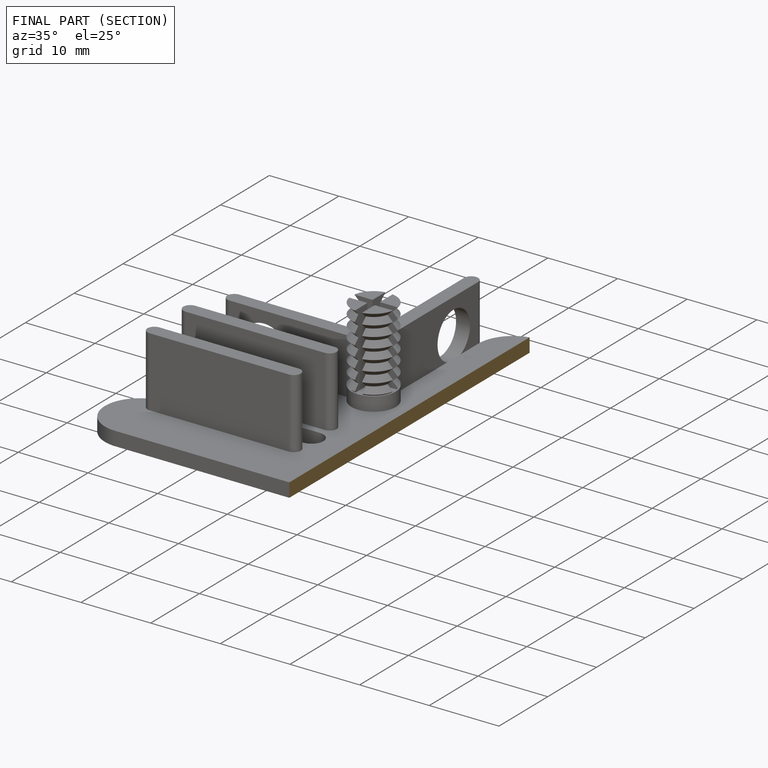
[diagram: finished part — half-section view (interior)]
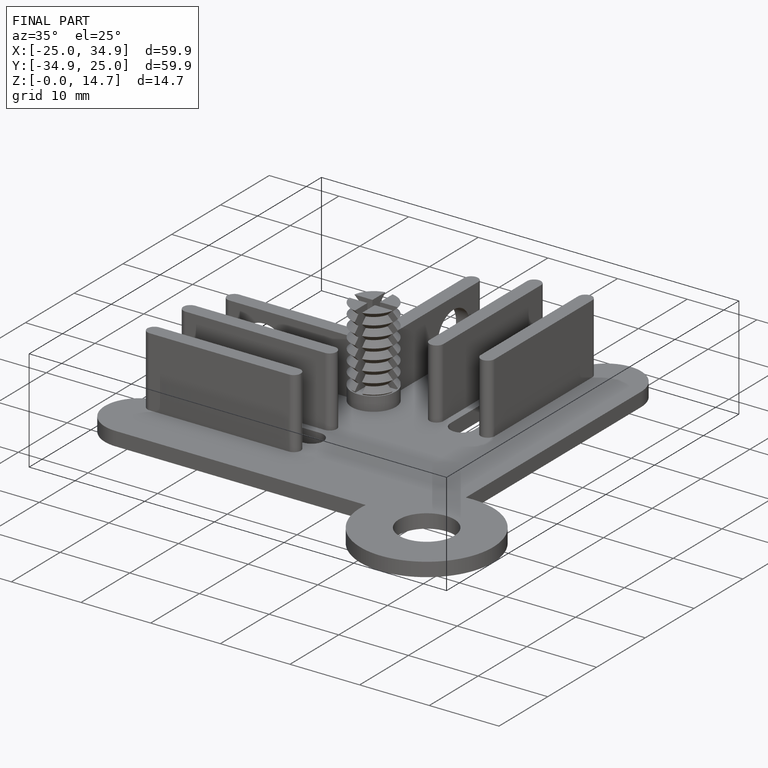
[diagram: finished part — iso view with bounding-box wireframe]
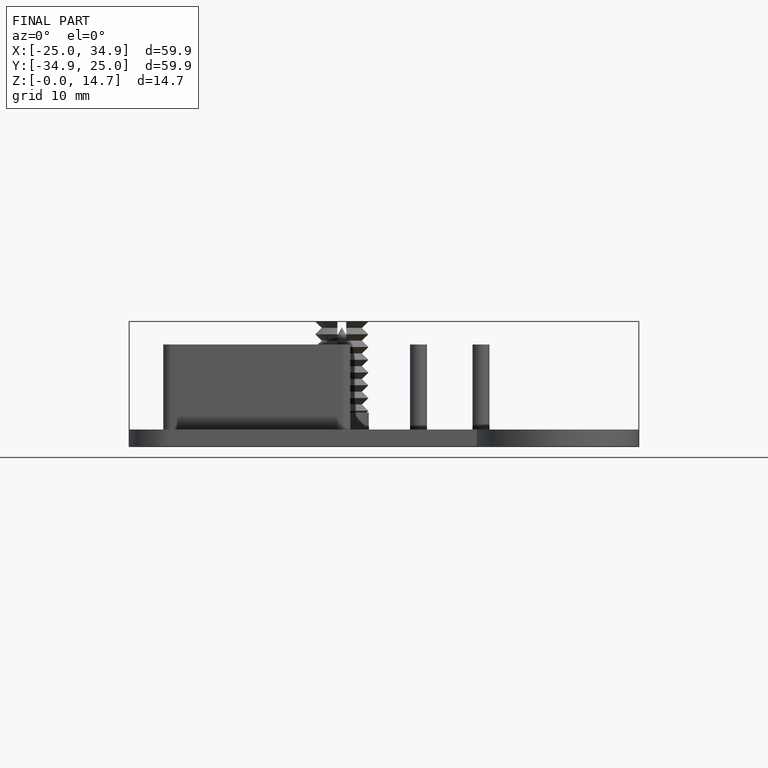
[diagram: finished part — front view with bounding-box wireframe]
